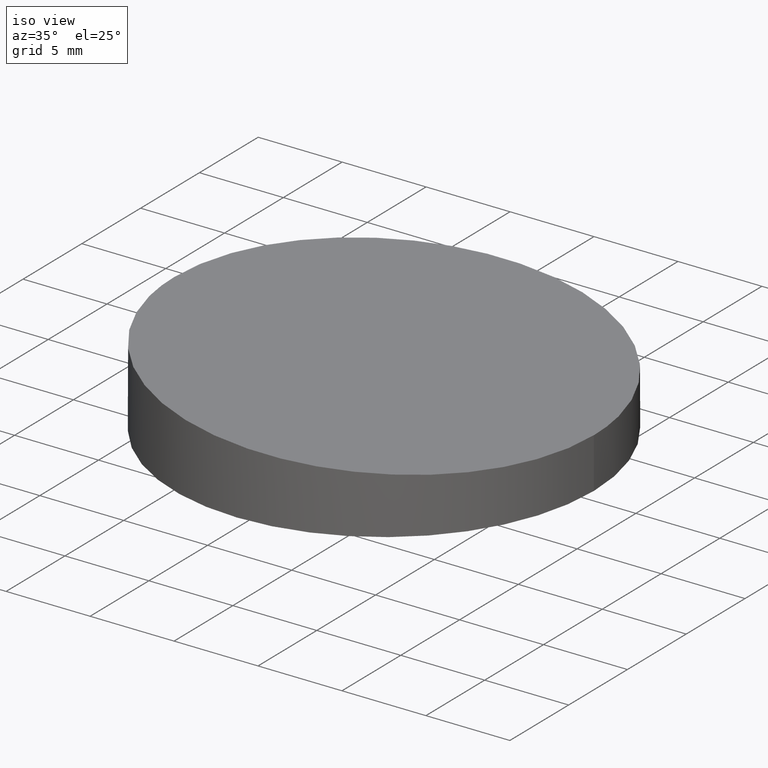
[diagram: clean part render]
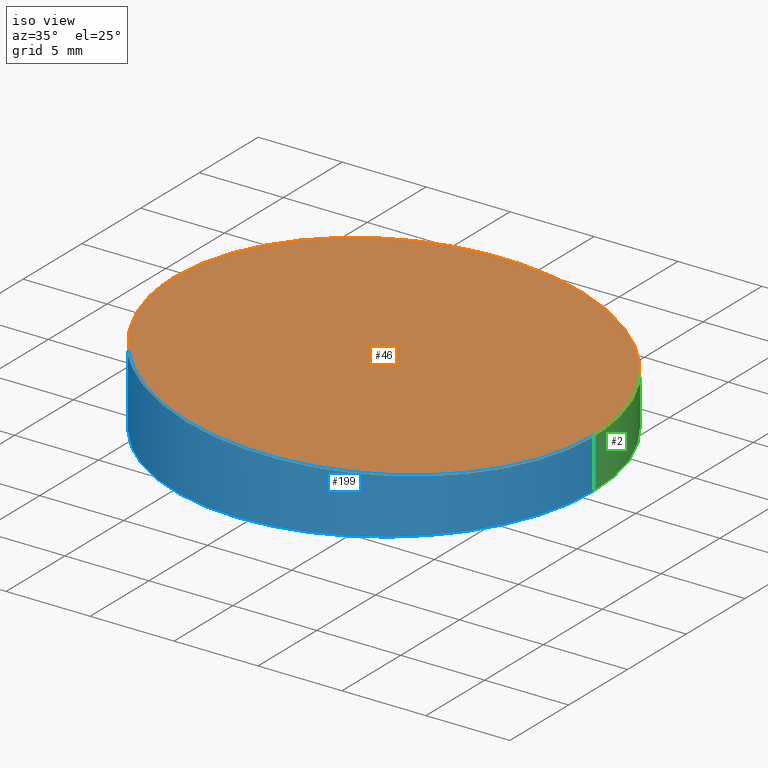
[diagram: same view with three faces highlighted in distinct colors, each labeled with its STEP entity id]
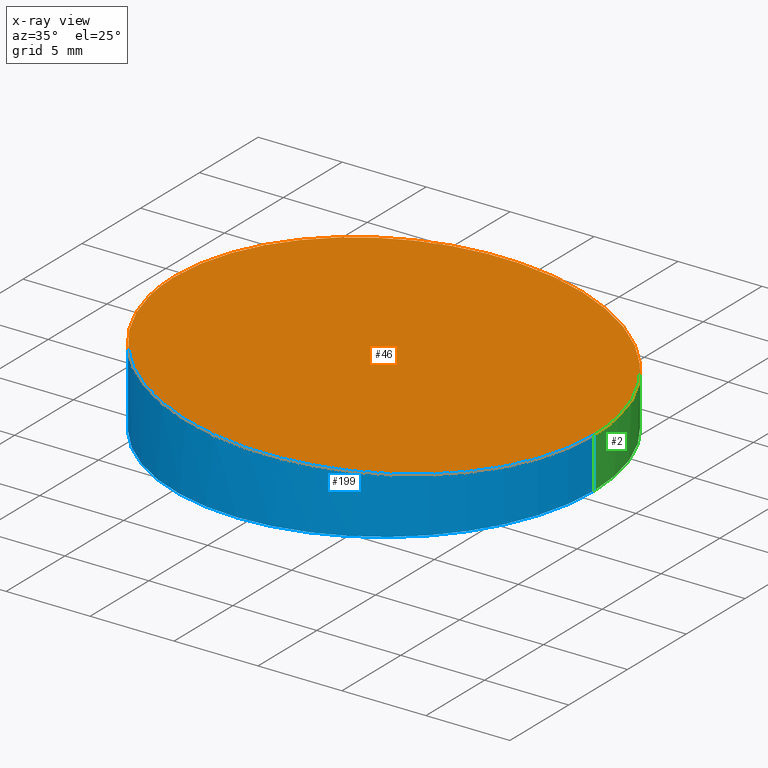
[diagram: x-ray of the same camera — body ghosted, the three highlighted faces saturated]
A machine part, iso view with three faces highlighted in distinct colors.
The next image is the same camera in x-ray (body ghosted, the three faces saturated) — at least one of them is partly hidden behind the body in this view.
Their STEP definitions:

[orange] entity #46 — the highlighted planar face has unit normal (-0.073, 0, -0.9973).
#11 = CARTESIAN_POINT ( 'NONE',  ( -12.49999999999999600, 0.0000000000000000000, 4.830182425211587500 ) ) ;
#14 = EDGE_CURVE ( 'NONE', #102, #237, #18, .T. ) ;
#18 =( BOUNDED_CURVE ( )  B_SPLINE_CURVE ( 3, ( #27, #69, #162, #181 ),
 .UNSPECIFIED., .F., .T. ) 
 B_SPLINE_CURVE_WITH_KNOTS ( ( 4, 4 ),
 ( 0.0000000000000000000, 3.141592653589793100 ),
 .UNSPECIFIED. ) 
 CURVE ( )  GEOMETRIC_REPRESENTATION_ITEM ( )  RATIONAL_B_SPLINE_CURVE ( ( 1.000000000000000000, 0.3333333333333333700, 0.3333333333333333700, 1.000000000000000000 ) ) 
 REPRESENTATION_ITEM ( '' )  );
#27 = CARTESIAN_POINT ( 'NONE',  ( 12.49999999999999600, 1.530808498934191100E-015, 3.000000000000000000 ) ) ;
#34 = PLANE ( 'NONE',  #242 ) ;
#46 = ADVANCED_FACE ( 'NONE', ( #147 ), #34, .F. ) ;
#51 = CARTESIAN_POINT ( 'NONE',  ( 12.49999999999999600, 1.530808498934191100E-015, 3.000000000000000000 ) ) ;
#69 = CARTESIAN_POINT ( 'NONE',  ( 12.50000000000000000, -24.99999999999998900, 2.999999999999999600 ) ) ;
#74 = CARTESIAN_POINT ( 'NONE',  ( -12.50000000000000000, 24.99999999999998900, 4.830182425211588400 ) ) ;
#90 = CARTESIAN_POINT ( 'NONE',  ( 12.50000000000000000, 24.99999999999998900, 2.999999999999999600 ) ) ;
#102 = VERTEX_POINT ( 'NONE', #113 ) ;
#104 = ORIENTED_EDGE ( 'NONE', *, *, #119, .F. ) ;
#113 = CARTESIAN_POINT ( 'NONE',  ( 12.49999999999999600, 1.530808498934191100E-015, 3.000000000000000000 ) ) ;
#119 = EDGE_CURVE ( 'NONE', #237, #102, #205, .T. ) ;
#130 = CARTESIAN_POINT ( 'NONE',  ( 12.49999999999999600, -25.00000000000000000, 3.000000000000000000 ) ) ;
#132 = DIRECTION ( 'NONE',  ( -0.07301191176743963800, 0.0000000000000000000, -0.9973310687730848600 ) ) ;
#147 = FACE_OUTER_BOUND ( 'NONE', #154, .T. ) ;
#154 = EDGE_LOOP ( 'NONE', ( #104, #244 ) ) ;
#162 = CARTESIAN_POINT ( 'NONE',  ( -12.49999999999999500, -24.99999999999998900, 4.830182425211588400 ) ) ;
#181 = CARTESIAN_POINT ( 'NONE',  ( -12.49999999999999600, 0.0000000000000000000, 4.830182425211587500 ) ) ;
#183 = CARTESIAN_POINT ( 'NONE',  ( -12.49999999999999600, 0.0000000000000000000, 4.830182425211587500 ) ) ;
#185 = DIRECTION ( 'NONE',  ( -0.9973310687730847500, 0.0000000000000000000, 0.07301191176743962500 ) ) ;
#205 =( BOUNDED_CURVE ( )  B_SPLINE_CURVE ( 3, ( #183, #74, #90, #51 ),
 .UNSPECIFIED., .F., .F. ) 
 B_SPLINE_CURVE_WITH_KNOTS ( ( 4, 4 ),
 ( 3.141592653589793100, 6.283185307179586200 ),
 .UNSPECIFIED. ) 
 CURVE ( )  GEOMETRIC_REPRESENTATION_ITEM ( )  RATIONAL_B_SPLINE_CURVE ( ( 1.000000000000000000, 0.3333333333333333700, 0.3333333333333333700, 1.000000000000000000 ) ) 
 REPRESENTATION_ITEM ( '' )  );
#237 = VERTEX_POINT ( 'NONE', #11 ) ;
#242 = AXIS2_PLACEMENT_3D ( 'NONE', #130, #132, #185 ) ;
#244 = ORIENTED_EDGE ( 'NONE', *, *, #14, .F. ) ;

[blue] entity #199 — the highlighted cylindrical surface (partial cylindrical patch) has radius 12.5 mm, axis along (-0, -0, -1).
#9 = ORIENTED_EDGE ( 'NONE', *, *, #20, .T. ) ;
#11 = CARTESIAN_POINT ( 'NONE',  ( -12.49999999999999600, 0.0000000000000000000, 4.830182425211587500 ) ) ;
#13 = ORIENTED_EDGE ( 'NONE', *, *, #43, .F. ) ;
#14 = EDGE_CURVE ( 'NONE', #102, #237, #18, .T. ) ;
#18 =( BOUNDED_CURVE ( )  B_SPLINE_CURVE ( 3, ( #27, #69, #162, #181 ),
 .UNSPECIFIED., .F., .T. ) 
 B_SPLINE_CURVE_WITH_KNOTS ( ( 4, 4 ),
 ( 0.0000000000000000000, 3.141592653589793100 ),
 .UNSPECIFIED. ) 
 CURVE ( )  GEOMETRIC_REPRESENTATION_ITEM ( )  RATIONAL_B_SPLINE_CURVE ( ( 1.000000000000000000, 0.3333333333333333700, 0.3333333333333333700, 1.000000000000000000 ) ) 
 REPRESENTATION_ITEM ( '' )  );
#20 = EDGE_CURVE ( 'NONE', #157, #41, #188, .T. ) ;
#24 = VECTOR ( 'NONE', #93, 1000.000000000000000 ) ;
#27 = CARTESIAN_POINT ( 'NONE',  ( 12.49999999999999600, 1.530808498934191100E-015, 3.000000000000000000 ) ) ;
#41 = VERTEX_POINT ( 'NONE', #112 ) ;
#43 = EDGE_CURVE ( 'NONE', #102, #41, #106, .T. ) ;
#53 = DIRECTION ( 'NONE',  ( -0.0000000000000000000, -0.0000000000000000000, -1.000000000000000000 ) ) ;
#69 = CARTESIAN_POINT ( 'NONE',  ( 12.50000000000000000, -24.99999999999998900, 2.999999999999999600 ) ) ;
#72 = DIRECTION ( 'NONE',  ( 0.0000000000000000000, 0.0000000000000000000, 1.000000000000000000 ) ) ;
#82 = ORIENTED_EDGE ( 'NONE', *, *, #115, .T. ) ;
#92 = CARTESIAN_POINT ( 'NONE',  ( 0.0000000000000000000, 0.0000000000000000000, 0.0000000000000000000 ) ) ;
#93 = DIRECTION ( 'NONE',  ( -0.0000000000000000000, -0.0000000000000000000, -1.000000000000000000 ) ) ;
#94 = EDGE_LOOP ( 'NONE', ( #13, #156, #82, #9 ) ) ;
#98 = LINE ( 'NONE', #131, #24 ) ;
#102 = VERTEX_POINT ( 'NONE', #113 ) ;
#106 = LINE ( 'NONE', #186, #200 ) ;
#107 = AXIS2_PLACEMENT_3D ( 'NONE', #204, #243, #190 ) ;
#112 = CARTESIAN_POINT ( 'NONE',  ( 12.49999999999999600, 1.530808498934191100E-015, 0.0000000000000000000 ) ) ;
#113 = CARTESIAN_POINT ( 'NONE',  ( 12.49999999999999600, 1.530808498934191100E-015, 3.000000000000000000 ) ) ;
#115 = EDGE_CURVE ( 'NONE', #237, #157, #98, .T. ) ;
#131 = CARTESIAN_POINT ( 'NONE',  ( -12.49999999999999600, 0.0000000000000000000, 10.00000000000000000 ) ) ;
#139 = FACE_OUTER_BOUND ( 'NONE', #94, .T. ) ;
#153 = CARTESIAN_POINT ( 'NONE',  ( -12.49999999999999600, 0.0000000000000000000, 0.0000000000000000000 ) ) ;
#156 = ORIENTED_EDGE ( 'NONE', *, *, #14, .T. ) ;
#157 = VERTEX_POINT ( 'NONE', #153 ) ;
#162 = CARTESIAN_POINT ( 'NONE',  ( -12.49999999999999500, -24.99999999999998900, 4.830182425211588400 ) ) ;
#181 = CARTESIAN_POINT ( 'NONE',  ( -12.49999999999999600, 0.0000000000000000000, 4.830182425211587500 ) ) ;
#186 = CARTESIAN_POINT ( 'NONE',  ( 12.49999999999999600, 1.530808498934191100E-015, 10.00000000000000000 ) ) ;
#188 = CIRCLE ( 'NONE', #250, 12.49999999999999600 ) ;
#190 = DIRECTION ( 'NONE',  ( -1.000000000000000000, 0.0000000000000000000, 0.0000000000000000000 ) ) ;
#198 = CYLINDRICAL_SURFACE ( 'NONE', #107, 12.49999999999999600 ) ;
#199 = ADVANCED_FACE ( 'NONE', ( #139 ), #198, .T. ) ;
#200 = VECTOR ( 'NONE', #53, 1000.000000000000000 ) ;
#204 = CARTESIAN_POINT ( 'NONE',  ( 0.0000000000000000000, 0.0000000000000000000, 10.00000000000000000 ) ) ;
#225 = DIRECTION ( 'NONE',  ( 1.000000000000000000, 0.0000000000000000000, 0.0000000000000000000 ) ) ;
#237 = VERTEX_POINT ( 'NONE', #11 ) ;
#243 = DIRECTION ( 'NONE',  ( -0.0000000000000000000, -0.0000000000000000000, -1.000000000000000000 ) ) ;
#250 = AXIS2_PLACEMENT_3D ( 'NONE', #92, #72, #225 ) ;

[green] entity #2 — the highlighted cylindrical surface (partial cylindrical patch) has radius 12.5 mm, axis along (-0, -0, -1).
#2 = ADVANCED_FACE ( 'NONE', ( #195 ), #125, .T. ) ;
#11 = CARTESIAN_POINT ( 'NONE',  ( -12.49999999999999600, 0.0000000000000000000, 4.830182425211587500 ) ) ;
#24 = VECTOR ( 'NONE', #93, 1000.000000000000000 ) ;
#41 = VERTEX_POINT ( 'NONE', #112 ) ;
#43 = EDGE_CURVE ( 'NONE', #102, #41, #106, .T. ) ;
#44 = EDGE_LOOP ( 'NONE', ( #55, #111, #251, #63 ) ) ;
#51 = CARTESIAN_POINT ( 'NONE',  ( 12.49999999999999600, 1.530808498934191100E-015, 3.000000000000000000 ) ) ;
#53 = DIRECTION ( 'NONE',  ( -0.0000000000000000000, -0.0000000000000000000, -1.000000000000000000 ) ) ;
#55 = ORIENTED_EDGE ( 'NONE', *, *, #119, .T. ) ;
#62 = AXIS2_PLACEMENT_3D ( 'NONE', #246, #76, #206 ) ;
#63 = ORIENTED_EDGE ( 'NONE', *, *, #115, .F. ) ;
#66 = DIRECTION ( 'NONE',  ( -0.0000000000000000000, -0.0000000000000000000, -1.000000000000000000 ) ) ;
#74 = CARTESIAN_POINT ( 'NONE',  ( -12.50000000000000000, 24.99999999999998900, 4.830182425211588400 ) ) ;
#76 = DIRECTION ( 'NONE',  ( 0.0000000000000000000, 0.0000000000000000000, 1.000000000000000000 ) ) ;
#90 = CARTESIAN_POINT ( 'NONE',  ( 12.50000000000000000, 24.99999999999998900, 2.999999999999999600 ) ) ;
#93 = DIRECTION ( 'NONE',  ( -0.0000000000000000000, -0.0000000000000000000, -1.000000000000000000 ) ) ;
#98 = LINE ( 'NONE', #131, #24 ) ;
#102 = VERTEX_POINT ( 'NONE', #113 ) ;
#106 = LINE ( 'NONE', #186, #200 ) ;
#111 = ORIENTED_EDGE ( 'NONE', *, *, #43, .T. ) ;
#112 = CARTESIAN_POINT ( 'NONE',  ( 12.49999999999999600, 1.530808498934191100E-015, 0.0000000000000000000 ) ) ;
#113 = CARTESIAN_POINT ( 'NONE',  ( 12.49999999999999600, 1.530808498934191100E-015, 3.000000000000000000 ) ) ;
#115 = EDGE_CURVE ( 'NONE', #237, #157, #98, .T. ) ;
#119 = EDGE_CURVE ( 'NONE', #237, #102, #205, .T. ) ;
#125 = CYLINDRICAL_SURFACE ( 'NONE', #159, 12.49999999999999600 ) ;
#131 = CARTESIAN_POINT ( 'NONE',  ( -12.49999999999999600, 0.0000000000000000000, 10.00000000000000000 ) ) ;
#153 = CARTESIAN_POINT ( 'NONE',  ( -12.49999999999999600, 0.0000000000000000000, 0.0000000000000000000 ) ) ;
#157 = VERTEX_POINT ( 'NONE', #153 ) ;
#159 = AXIS2_PLACEMENT_3D ( 'NONE', #201, #66, #221 ) ;
#169 = CIRCLE ( 'NONE', #62, 12.49999999999999600 ) ;
#183 = CARTESIAN_POINT ( 'NONE',  ( -12.49999999999999600, 0.0000000000000000000, 4.830182425211587500 ) ) ;
#186 = CARTESIAN_POINT ( 'NONE',  ( 12.49999999999999600, 1.530808498934191100E-015, 10.00000000000000000 ) ) ;
#195 = FACE_OUTER_BOUND ( 'NONE', #44, .T. ) ;
#200 = VECTOR ( 'NONE', #53, 1000.000000000000000 ) ;
#201 = CARTESIAN_POINT ( 'NONE',  ( 0.0000000000000000000, 0.0000000000000000000, 10.00000000000000000 ) ) ;
#205 =( BOUNDED_CURVE ( )  B_SPLINE_CURVE ( 3, ( #183, #74, #90, #51 ),
 .UNSPECIFIED., .F., .F. ) 
 B_SPLINE_CURVE_WITH_KNOTS ( ( 4, 4 ),
 ( 3.141592653589793100, 6.283185307179586200 ),
 .UNSPECIFIED. ) 
 CURVE ( )  GEOMETRIC_REPRESENTATION_ITEM ( )  RATIONAL_B_SPLINE_CURVE ( ( 1.000000000000000000, 0.3333333333333333700, 0.3333333333333333700, 1.000000000000000000 ) ) 
 REPRESENTATION_ITEM ( '' )  );
#206 = DIRECTION ( 'NONE',  ( 1.000000000000000000, 0.0000000000000000000, 0.0000000000000000000 ) ) ;
#221 = DIRECTION ( 'NONE',  ( -1.000000000000000000, 0.0000000000000000000, 0.0000000000000000000 ) ) ;
#237 = VERTEX_POINT ( 'NONE', #11 ) ;
#239 = EDGE_CURVE ( 'NONE', #41, #157, #169, .T. ) ;
#246 = CARTESIAN_POINT ( 'NONE',  ( 0.0000000000000000000, 0.0000000000000000000, 0.0000000000000000000 ) ) ;
#251 = ORIENTED_EDGE ( 'NONE', *, *, #239, .T. ) ;